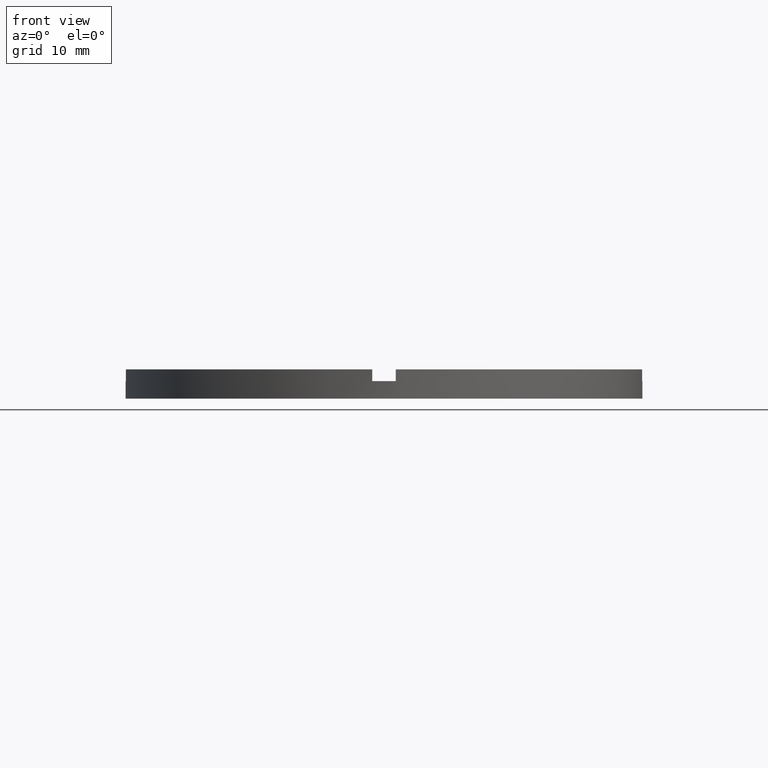
[diagram: clean part render]
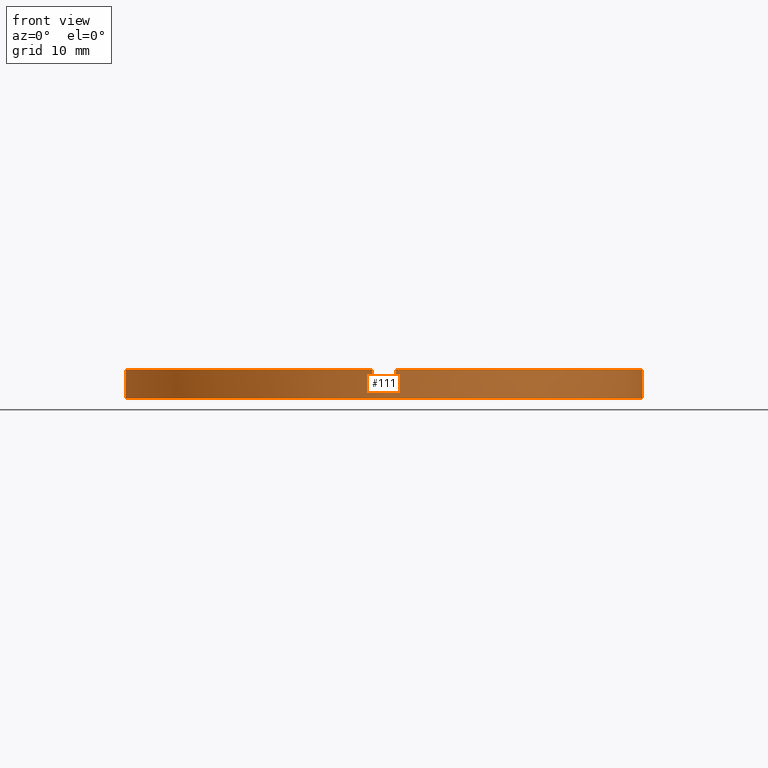
[diagram: same view with one face highlighted and labeled with its STEP entity id]
A machine part, front view. The second image highlights one B-rep face of the part: STEP entity #111.
In plain terms, the highlighted cylindrical surface (partial cylindrical patch) has radius 22 mm, axis along (-0, -0, -1).
Its self-contained STEP definition (entity closure, byte-faithful):
#10 = DIRECTION ( 'NONE',  ( 1.000000000000000000, 0.000000000000000000, 0.000000000000000000 ) ) ;
#24 = CARTESIAN_POINT ( 'NONE',  ( -21.97726097583590743, -1.000000000000025091, 1.500000000000000000 ) ) ;
#28 = AXIS2_PLACEMENT_3D ( 'NONE', #575, #387, #127 ) ;
#46 = ORIENTED_EDGE ( 'NONE', *, *, #561, .T. ) ;
#48 = DIRECTION ( 'NONE',  ( 0.000000000000000000, 0.000000000000000000, 1.000000000000000000 ) ) ;
#49 = CARTESIAN_POINT ( 'NONE',  ( 0.000000000000000000, 0.000000000000000000, 1.500000000000000000 ) ) ;
#54 = CARTESIAN_POINT ( 'NONE',  ( 21.97726097583590388, -1.000000000000158096, 1.500000000000000000 ) ) ;
#71 = LINE ( 'NONE', #224, #601 ) ;
#73 = CARTESIAN_POINT ( 'NONE',  ( 0.000000000000000000, 0.000000000000000000, 2.500000000000000000 ) ) ;
#109 = DIRECTION ( 'NONE',  ( 1.000000000000000000, 0.000000000000000000, 0.000000000000000000 ) ) ;
#111 = ADVANCED_FACE ( 'NONE', ( #230 ), #480, .T. ) ;
#116 = EDGE_CURVE ( 'NONE', #188, #704, #219, .T. ) ;
#120 = DIRECTION ( 'NONE',  ( -0.000000000000000000, -0.000000000000000000, -1.000000000000000000 ) ) ;
#125 = CARTESIAN_POINT ( 'NONE',  ( 21.97726097583590388, -1.000000000000158096, 2.500000000000000000 ) ) ;
#127 = DIRECTION ( 'NONE',  ( 1.000000000000000000, 0.000000000000000000, 0.000000000000000000 ) ) ;
#146 = CARTESIAN_POINT ( 'NONE',  ( -1.000000000000161426, -21.97726097583590033, 2.500000000000000000 ) ) ;
#149 = VERTEX_POINT ( 'NONE', #161 ) ;
#161 = CARTESIAN_POINT ( 'NONE',  ( -1.000000000000161426, -21.97726097583590033, 2.500000000000000000 ) ) ;
#164 = ORIENTED_EDGE ( 'NONE', *, *, #543, .F. ) ;
#167 = VERTEX_POINT ( 'NONE', #411 ) ;
#178 = EDGE_LOOP ( 'NONE', ( #366, #577, #46, #334, #317, #680, #426, #164, #573, #436, #465, #204 ) ) ;
#183 = DIRECTION ( 'NONE',  ( -0.000000000000000000, -0.000000000000000000, -1.000000000000000000 ) ) ;
#188 = VERTEX_POINT ( 'NONE', #288 ) ;
#203 = EDGE_CURVE ( 'NONE', #278, #438, #739, .T. ) ;
#204 = ORIENTED_EDGE ( 'NONE', *, *, #381, .T. ) ;
#219 = CIRCLE ( 'NONE', #712, 22.00000000000000000 ) ;
#222 = CARTESIAN_POINT ( 'NONE',  ( 22.00000000000000000, 2.694222958124176809E-15, 0.000000000000000000 ) ) ;
#224 = CARTESIAN_POINT ( 'NONE',  ( -22.00000000000000000, 0.000000000000000000, 2.500000000000000000 ) ) ;
#230 = FACE_OUTER_BOUND ( 'NONE', #178, .T. ) ;
#231 = AXIS2_PLACEMENT_3D ( 'NONE', #483, #48, #109 ) ;
#242 = CARTESIAN_POINT ( 'NONE',  ( 0.000000000000000000, 0.000000000000000000, 1.500000000000000000 ) ) ;
#244 = DIRECTION ( 'NONE',  ( -0.000000000000000000, 0.000000000000000000, 1.000000000000000000 ) ) ;
#249 = LINE ( 'NONE', #146, #257 ) ;
#257 = VECTOR ( 'NONE', #349, 1000.000000000000000 ) ;
#260 = LINE ( 'NONE', #778, #750 ) ;
#264 = VERTEX_POINT ( 'NONE', #329 ) ;
#278 = VERTEX_POINT ( 'NONE', #54 ) ;
#282 = EDGE_CURVE ( 'NONE', #691, #697, #260, .T. ) ;
#286 = DIRECTION ( 'NONE',  ( -0.000000000000000000, -0.000000000000000000, -1.000000000000000000 ) ) ;
#288 = CARTESIAN_POINT ( 'NONE',  ( -22.00000000000000000, 0.000000000000000000, 1.500000000000000000 ) ) ;
#294 = DIRECTION ( 'NONE',  ( 0.000000000000000000, 0.000000000000000000, 1.000000000000000000 ) ) ;
#302 = AXIS2_PLACEMENT_3D ( 'NONE', #537, #559, #420 ) ;
#316 = LINE ( 'NONE', #617, #322 ) ;
#317 = ORIENTED_EDGE ( 'NONE', *, *, #282, .T. ) ;
#322 = VECTOR ( 'NONE', #749, 1000.000000000000000 ) ;
#325 = VECTOR ( 'NONE', #529, 1000.000000000000000 ) ;
#328 = CIRCLE ( 'NONE', #302, 22.00000000000000000 ) ;
#329 = CARTESIAN_POINT ( 'NONE',  ( 21.97726097583590388, -1.000000000000158096, 2.500000000000000000 ) ) ;
#334 = ORIENTED_EDGE ( 'NONE', *, *, #348, .F. ) ;
#341 = LINE ( 'NONE', #562, #597 ) ;
#348 = EDGE_CURVE ( 'NONE', #691, #264, #766, .T. ) ;
#349 = DIRECTION ( 'NONE',  ( 0.000000000000000000, 0.000000000000000000, 1.000000000000000000 ) ) ;
#356 = CARTESIAN_POINT ( 'NONE',  ( -22.00000000000000000, 0.000000000000000000, 0.000000000000000000 ) ) ;
#358 = EDGE_CURVE ( 'NONE', #167, #149, #249, .T. ) ;
#366 = ORIENTED_EDGE ( 'NONE', *, *, #584, .F. ) ;
#369 = DIRECTION ( 'NONE',  ( 1.000000000000000000, 0.000000000000000000, 0.000000000000000000 ) ) ;
#381 = EDGE_CURVE ( 'NONE', #475, #659, #730, .T. ) ;
#387 = DIRECTION ( 'NONE',  ( 0.000000000000000000, 0.000000000000000000, 1.000000000000000000 ) ) ;
#411 = CARTESIAN_POINT ( 'NONE',  ( -1.000000000000161426, -21.97726097583590033, 1.500000000000000000 ) ) ;
#420 = DIRECTION ( 'NONE',  ( 1.000000000000000000, 0.000000000000000000, 0.000000000000000000 ) ) ;
#423 = EDGE_CURVE ( 'NONE', #188, #475, #71, .T. ) ;
#426 = ORIENTED_EDGE ( 'NONE', *, *, #358, .T. ) ;
#431 = VERTEX_POINT ( 'NONE', #624 ) ;
#436 = ORIENTED_EDGE ( 'NONE', *, *, #116, .F. ) ;
#438 = VERTEX_POINT ( 'NONE', #768 ) ;
#465 = ORIENTED_EDGE ( 'NONE', *, *, #423, .T. ) ;
#475 = VERTEX_POINT ( 'NONE', #356 ) ;
#480 = CYLINDRICAL_SURFACE ( 'NONE', #618, 22.00000000000000000 ) ;
#483 = CARTESIAN_POINT ( 'NONE',  ( 0.000000000000000000, 0.000000000000000000, 2.500000000000000000 ) ) ;
#520 = DIRECTION ( 'NONE',  ( -1.000000000000000000, 0.000000000000000000, 0.000000000000000000 ) ) ;
#529 = DIRECTION ( 'NONE',  ( 0.000000000000000000, 0.000000000000000000, 1.000000000000000000 ) ) ;
#537 = CARTESIAN_POINT ( 'NONE',  ( 0.000000000000000000, 0.000000000000000000, 2.500000000000000000 ) ) ;
#543 = EDGE_CURVE ( 'NONE', #431, #149, #328, .T. ) ;
#550 = EDGE_CURVE ( 'NONE', #431, #704, #316, .T. ) ;
#559 = DIRECTION ( 'NONE',  ( 0.000000000000000000, 0.000000000000000000, 1.000000000000000000 ) ) ;
#561 = EDGE_CURVE ( 'NONE', #278, #264, #565, .T. ) ;
#562 = CARTESIAN_POINT ( 'NONE',  ( 22.00000000000000000, 2.694222958124176809E-15, 2.500000000000000000 ) ) ;
#565 = LINE ( 'NONE', #125, #325 ) ;
#568 = CARTESIAN_POINT ( 'NONE',  ( 0.9999999999998386846, -21.97726097583591809, 2.500000000000000000 ) ) ;
#573 = ORIENTED_EDGE ( 'NONE', *, *, #550, .T. ) ;
#575 = CARTESIAN_POINT ( 'NONE',  ( 0.000000000000000000, 0.000000000000000000, 0.000000000000000000 ) ) ;
#577 = ORIENTED_EDGE ( 'NONE', *, *, #203, .F. ) ;
#584 = EDGE_CURVE ( 'NONE', #438, #659, #341, .T. ) ;
#587 = AXIS2_PLACEMENT_3D ( 'NONE', #242, #294, #603 ) ;
#591 = CIRCLE ( 'NONE', #641, 22.00000000000000000 ) ;
#597 = VECTOR ( 'NONE', #286, 1000.000000000000000 ) ;
#601 = VECTOR ( 'NONE', #670, 1000.000000000000000 ) ;
#603 = DIRECTION ( 'NONE',  ( 1.000000000000000000, 0.000000000000000000, 0.000000000000000000 ) ) ;
#617 = CARTESIAN_POINT ( 'NONE',  ( -21.97726097583590743, -1.000000000000025091, 2.500000000000000000 ) ) ;
#618 = AXIS2_PLACEMENT_3D ( 'NONE', #73, #183, #520 ) ;
#624 = CARTESIAN_POINT ( 'NONE',  ( -21.97726097583590743, -1.000000000000025091, 2.500000000000000000 ) ) ;
#641 = AXIS2_PLACEMENT_3D ( 'NONE', #49, #244, #369 ) ;
#653 = CARTESIAN_POINT ( 'NONE',  ( 0.000000000000000000, 0.000000000000000000, 1.500000000000000000 ) ) ;
#659 = VERTEX_POINT ( 'NONE', #222 ) ;
#660 = CARTESIAN_POINT ( 'NONE',  ( 0.9999999999998386846, -21.97726097583591809, 1.500000000000000000 ) ) ;
#670 = DIRECTION ( 'NONE',  ( -0.000000000000000000, -0.000000000000000000, -1.000000000000000000 ) ) ;
#680 = ORIENTED_EDGE ( 'NONE', *, *, #735, .F. ) ;
#691 = VERTEX_POINT ( 'NONE', #568 ) ;
#697 = VERTEX_POINT ( 'NONE', #660 ) ;
#704 = VERTEX_POINT ( 'NONE', #24 ) ;
#712 = AXIS2_PLACEMENT_3D ( 'NONE', #653, #742, #10 ) ;
#730 = CIRCLE ( 'NONE', #28, 22.00000000000000000 ) ;
#735 = EDGE_CURVE ( 'NONE', #167, #697, #591, .T. ) ;
#739 = CIRCLE ( 'NONE', #587, 22.00000000000000000 ) ;
#742 = DIRECTION ( 'NONE',  ( 0.000000000000000000, 0.000000000000000000, 1.000000000000000000 ) ) ;
#749 = DIRECTION ( 'NONE',  ( -0.000000000000000000, -0.000000000000000000, -1.000000000000000000 ) ) ;
#750 = VECTOR ( 'NONE', #120, 1000.000000000000000 ) ;
#766 = CIRCLE ( 'NONE', #231, 22.00000000000000000 ) ;
#768 = CARTESIAN_POINT ( 'NONE',  ( 22.00000000000000000, 2.694222958124176809E-15, 1.500000000000000000 ) ) ;
#778 = CARTESIAN_POINT ( 'NONE',  ( 0.9999999999998386846, -21.97726097583591809, 2.500000000000000000 ) ) ;